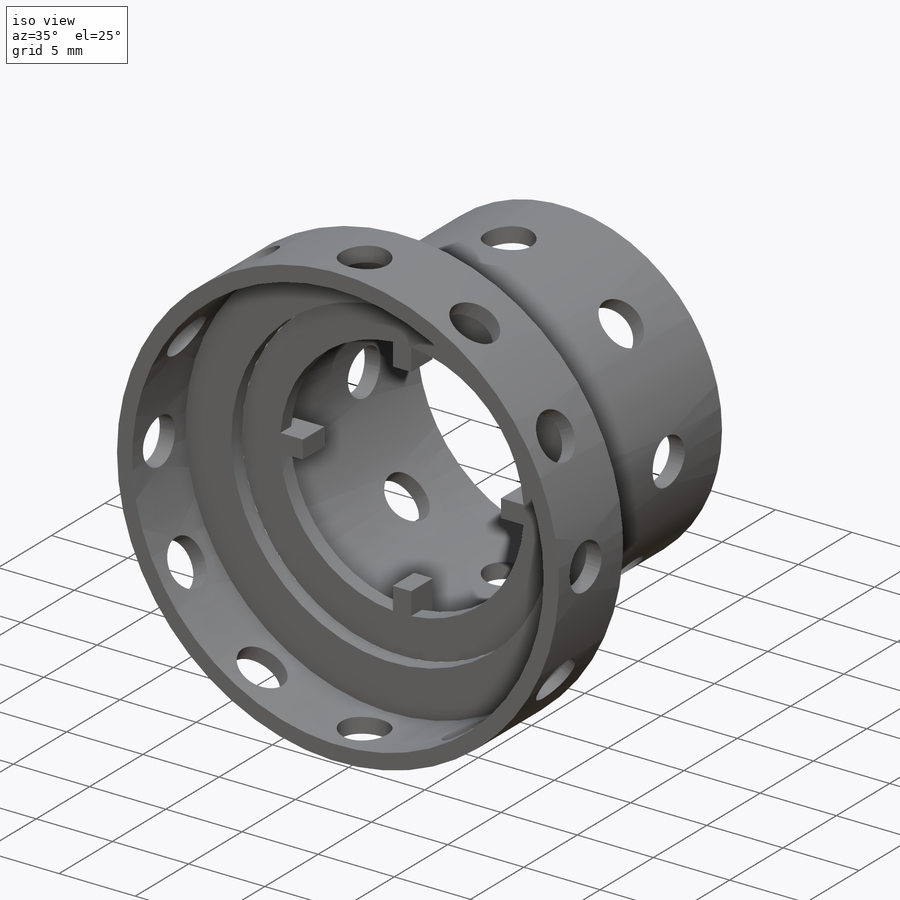
[diagram: iso view]
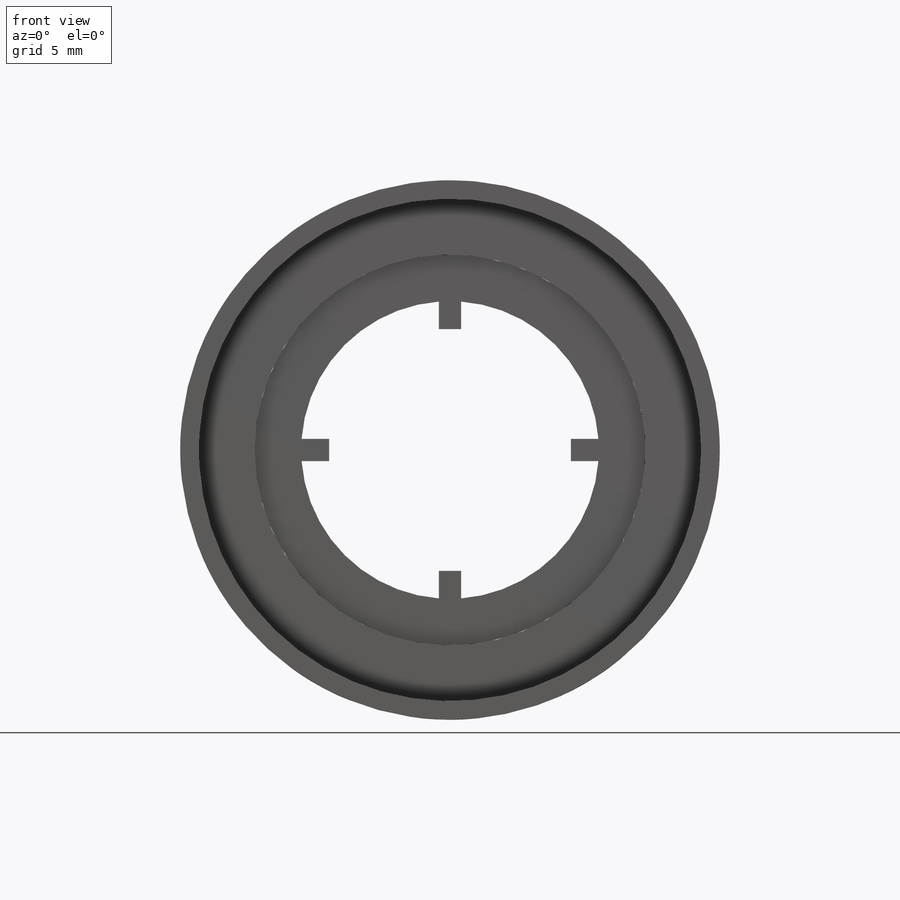
[diagram: front view]
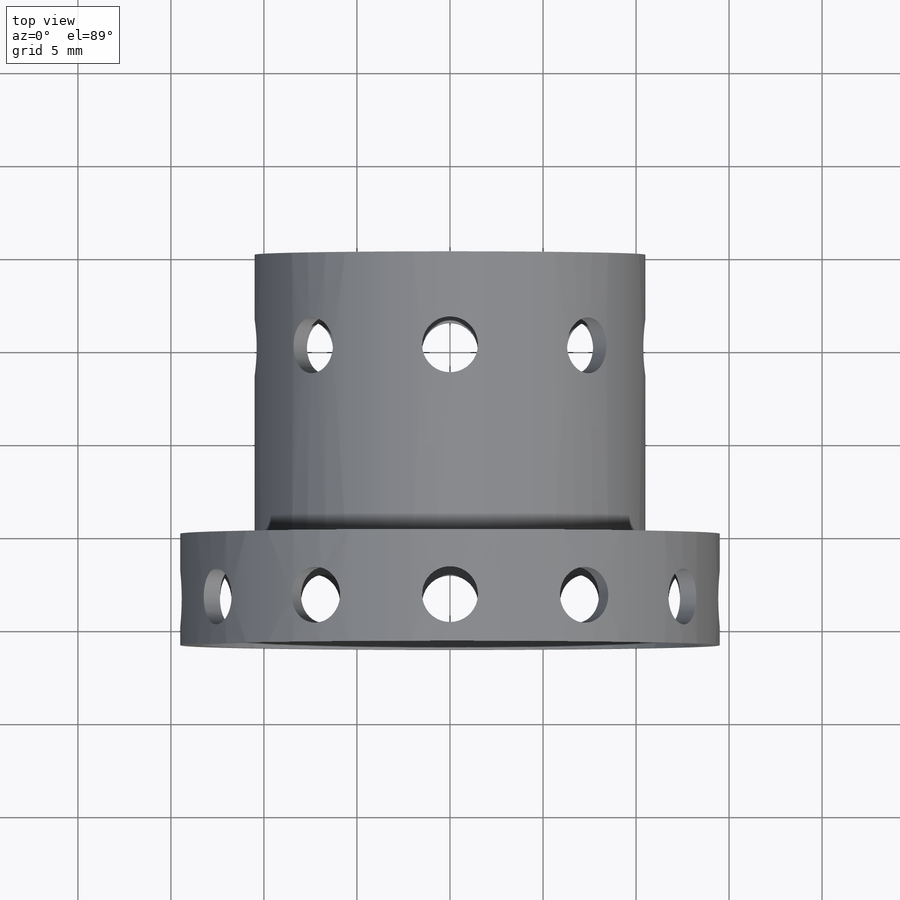
[diagram: top view]
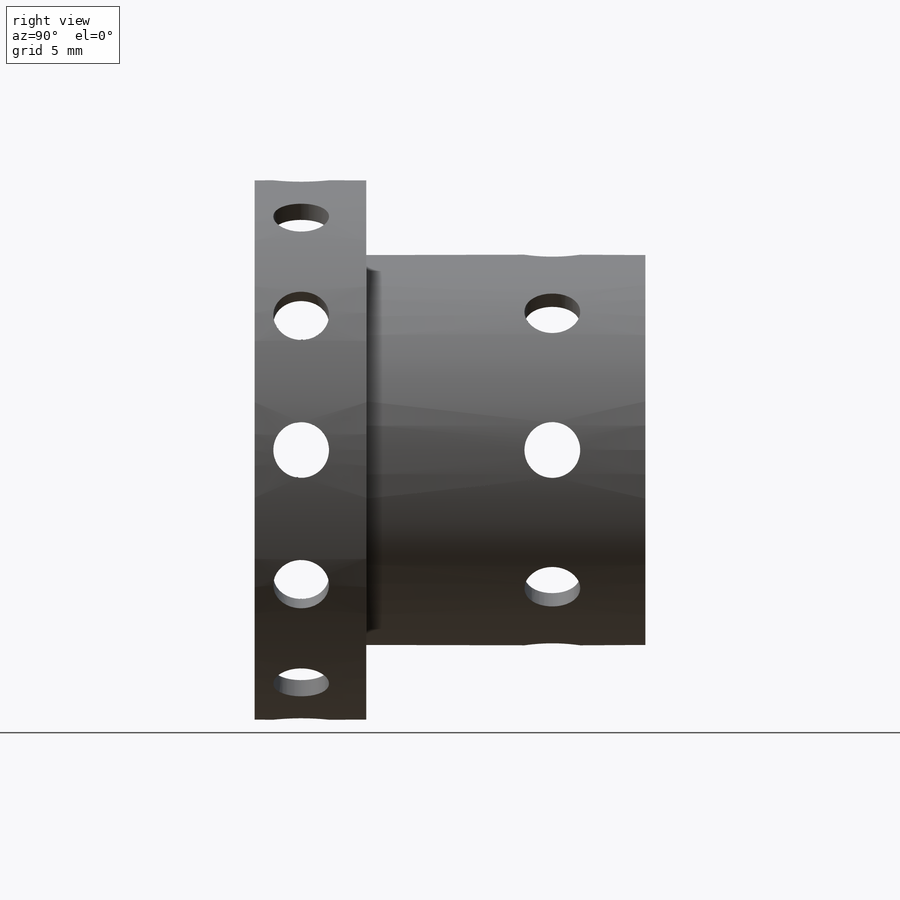
[diagram: right view]
SOLIDWORKS PART (.sldprt)
format: sldprt  version: not decoded by parser v0  size: 497,664 bytes
history: native  units: mm
features: sketch x10, extrude x5, cut_extrude x4, plane x3, pattern_circular x3, material x1 + 2 further entries (+11 scaffold rows collapsed)
feature tree (39):
  scaffold x11  (default folders/planes/origin — collapsed)
  material  "材料 <未指定>"
  "ｻｰﾌｪｽ ﾎﾞﾃﾞｨ"
  "ｿﾘｯﾄﾞ ﾎﾞﾃﾞｨ"
  plane  "正面"
  plane  "平面"
  plane  "右側面"
  sketch  "ｽｹｯﾁ1"  dims[D1=21.0mm D2=19.0mm]
  extrude  "ﾎﾞｽ - 押し出し1"  Depth=15mm
  sketch  "ｽｹｯﾁ2"  dims[D1=21.0mm]
  extrude  "ﾎﾞｽ - 押し出し2"  Depth=1mm
  sketch  "ｽｹｯﾁ3"
  cut_extrude  "ｶｯﾄ - 押し出し1"  Depth=1mm
  sketch  "ｽｹｯﾁ4"  dims[D1=15.0mm]
  sketch  "ｽｹｯﾁ5"  dims[D1=1.2mm D2=2.0mm D3=2.0mm D4=1.2mm]
  sketch  "ｽｹｯﾁ6"  dims[D1=20.0mm D2=16.0mm]
  extrude  "ﾎﾞｽ - 押し出し3"  Depth=1mm
  extrude  "ﾎﾞｽ - 押し出し4"  Depth=2mm
  pattern_circular  "円形ﾊﾟﾀｰﾝ1"  Count=4 Angle=360deg
  sketch  "ｽｹｯﾁ7"  dims[D1=3.0mm D2=5.0mm]
  cut_extrude  "ｶｯﾄ - 押し出し2"  Depth=20mm
  pattern_circular  "円形ﾊﾟﾀｰﾝ2"  Count=8 Angle=360deg
  sketch  "ｽｹｯﾁ8"  dims[D1=29.0mm]
  extrude  "ﾎﾞｽ - 押し出し5"  Depth=6mm
  sketch  "ｽｹｯﾁ9"  dims[D1=27.0mm]
  cut_extrude  "ｶｯﾄ - 押し出し3"  Depth=5mm
  sketch  "ｽｹｯﾁ10"  dims[D1=3.0mm D2=2.5mm]
  cut_extrude  "ｶｯﾄ - 押し出し4"  [1 undecoded]
  pattern_circular  "円形ﾊﾟﾀｰﾝ4"  Count=12 Angle=360deg
decode coverage: 20 of 22 modeling features carry decoded parameters; 2 rows unclassified (native names shown)
note: 1 parameter value undecoded
note: suppression state not decoded; provenance and decode notes live in map.json
